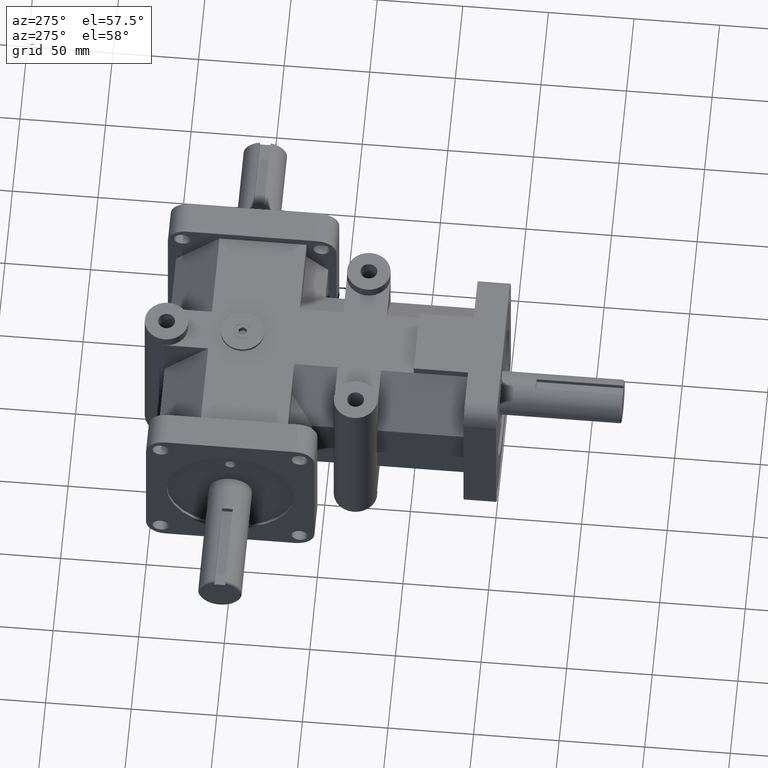
[diagram: clean part render]
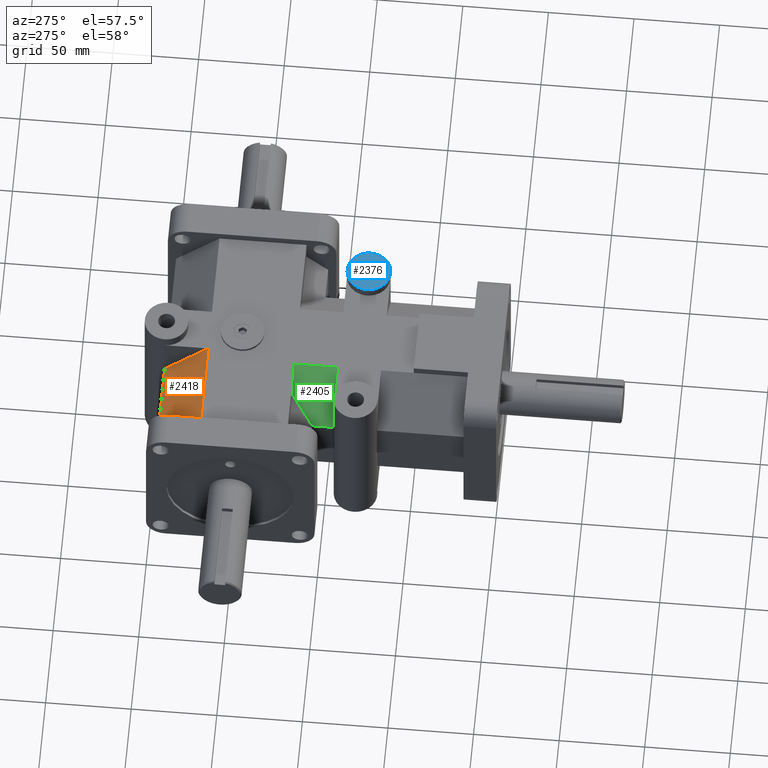
[diagram: same view with three faces highlighted in distinct colors, each labeled with its STEP entity id]
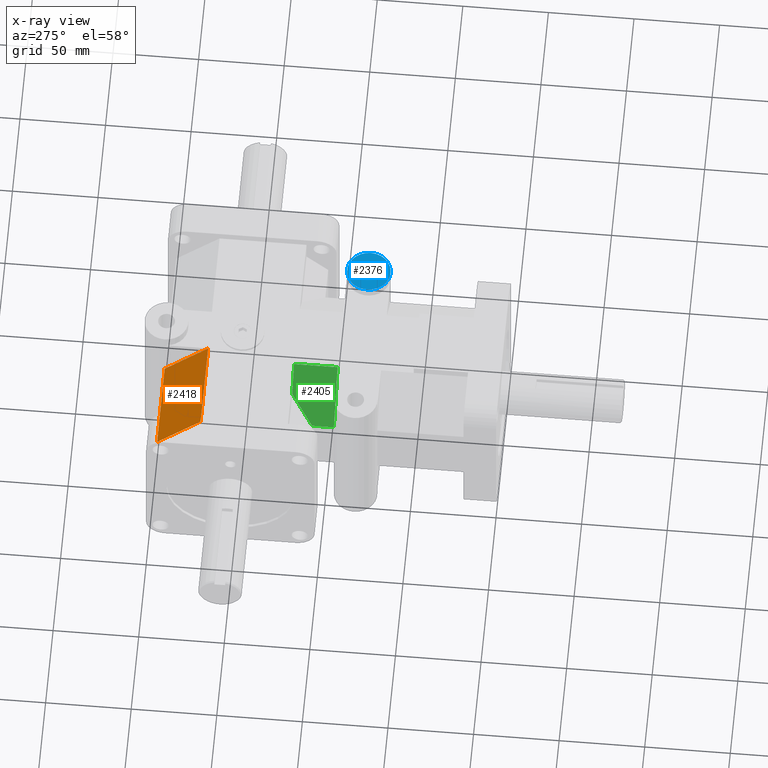
[diagram: x-ray of the same camera — body ghosted, the three highlighted faces saturated]
A machine part, auxiliary view with three faces highlighted in distinct colors.
The next image is the same camera in x-ray (body ghosted, the three faces saturated) — at least one of them is partly hidden behind the body in this view.
Their STEP definitions:

[orange] entity #2418 — the highlighted planar face has unit normal (0, 0.7071, 0.7071).
#194=VERTEX_POINT('',#3289);
#195=VERTEX_POINT('',#3291);
#205=VERTEX_POINT('',#3313);
#391=VERTEX_POINT('',#3840);
#422=VECTOR('',#2695,1.);
#430=VECTOR('',#2704,1.);
#565=VECTOR('',#3168,1.);
#596=VECTOR('',#3214,1.);
#623=LINE('',#3290,#422);
#631=LINE('',#3306,#430);
#766=LINE('',#3839,#565);
#797=LINE('',#3899,#596);
#833=EDGE_CURVE('',#195,#194,#623,.F.);
#845=EDGE_CURVE('',#194,#205,#631,.T.);
#1079=EDGE_CURVE('',#205,#391,#766,.T.);
#1137=EDGE_CURVE('',#391,#195,#797,.T.);
#1717=ORIENTED_EDGE('',*,*,#1079,.T.);
#1718=ORIENTED_EDGE('',*,*,#1137,.T.);
#1719=ORIENTED_EDGE('',*,*,#833,.T.);
#1720=ORIENTED_EDGE('',*,*,#845,.T.);
#2017=EDGE_LOOP('',(#1717,#1718,#1719,#1720));
#2252=FACE_BOUND('',#2017,.T.);
#2418=ADVANCED_FACE('',(#2252),#4000,.T.);
#2648=AXIS2_PLACEMENT_3D('',#3905,#3219,$);
#2695=DIRECTION('',(0.,0.707106781186548,-0.707106781186548));
#2704=DIRECTION('',(1.,0.,0.));
#3168=DIRECTION('',(0.,0.707106781186548,-0.707106781186548));
#3214=DIRECTION('',(-1.,0.,0.));
#3219=DIRECTION('',(0.,0.707106781186548,0.707106781186548));
#3289=CARTESIAN_POINT('',(-2.5,6.75,1.75));
#3290=CARTESIAN_POINT('',(-2.5,7.6875,0.8125));
#3291=CARTESIAN_POINT('',(-2.5,7.75,0.75));
#3306=CARTESIAN_POINT('',(1.25,6.75,1.75));
#3313=CARTESIAN_POINT('',(-0.5,6.75,1.75));
#3839=CARTESIAN_POINT('',(-0.5,7.6875,0.8125));
#3840=CARTESIAN_POINT('',(-0.5,7.75,0.749999999999999));
#3899=CARTESIAN_POINT('',(1.25,7.75,0.75));
#3905=CARTESIAN_POINT('',(1.25,7.25,1.25));
#4000=PLANE('',#2648);

[blue] entity #2376 — the highlighted planar face has unit normal (0, 0, 1).
#165=CIRCLE('',#2617,0.195);
#168=CIRCLE('',#2622,0.5);
#381=VERTEX_POINT('',#3810);
#384=VERTEX_POINT('',#3818);
#1068=EDGE_CURVE('',#381,#381,#165,.T.);
#1071=EDGE_CURVE('',#384,#384,#168,.T.);
#1549=ORIENTED_EDGE('',*,*,#1068,.T.);
#1550=ORIENTED_EDGE('',*,*,#1071,.F.);
#1963=EDGE_LOOP('',(#1549));
#1964=EDGE_LOOP('',(#1550));
#2198=FACE_BOUND('',#1963,.T.);
#2199=FACE_BOUND('',#1964,.T.);
#2376=ADVANCED_FACE('',(#2198,#2199),#3982,.T.);
#2617=AXIS2_PLACEMENT_3D('',#3809,#3138,#3139);
#2621=AXIS2_PLACEMENT_3D('',#3816,#3146,$);
#2622=AXIS2_PLACEMENT_3D('',#3817,#3147,#3148);
#3138=DIRECTION('',(0.,0.,-1.));
#3139=DIRECTION('',(0.195,0.,0.));
#3146=DIRECTION('',(0.,0.,1.));
#3147=DIRECTION('',(0.,0.,-1.));
#3148=DIRECTION('',(0.5,0.,0.));
#3809=CARTESIAN_POINT('',(1.75,3.25,2.));
#3810=CARTESIAN_POINT('',(1.945,3.25,2.));
#3816=CARTESIAN_POINT('',(1.79545454545455,3.25,2.));
#3817=CARTESIAN_POINT('',(1.75,3.25,2.));
#3818=CARTESIAN_POINT('',(2.25,3.25,2.));
#3982=PLANE('',#2621);

[green] entity #2405 — the highlighted planar face has unit normal (-0.7071, 0, 0.7071).
#178=VERTEX_POINT('',#3257);
#180=VERTEX_POINT('',#3260);
#206=VERTEX_POINT('',#3315);
#235=VERTEX_POINT('',#3376);
#390=VERTEX_POINT('',#3836);
#415=VECTOR('',#2671,1.);
#433=VECTOR('',#2709,1.);
#453=VECTOR('',#2753,1.);
#563=VECTOR('',#3165,1.);
#590=VECTOR('',#3204,1.);
#616=LINE('',#3259,#415);
#634=LINE('',#3314,#433);
#654=LINE('',#3377,#453);
#764=LINE('',#3835,#563);
#791=LINE('',#3886,#590);
#817=EDGE_CURVE('',#180,#178,#616,.T.);
#846=EDGE_CURVE('',#180,#206,#634,.T.);
#878=EDGE_CURVE('',#235,#178,#654,.T.);
#1077=EDGE_CURVE('',#390,#206,#764,.T.);
#1113=EDGE_CURVE('',#235,#390,#791,.T.);
#1662=ORIENTED_EDGE('',*,*,#817,.T.);
#1663=ORIENTED_EDGE('',*,*,#878,.F.);
#1664=ORIENTED_EDGE('',*,*,#1113,.T.);
#1665=ORIENTED_EDGE('',*,*,#1077,.T.);
#1666=ORIENTED_EDGE('',*,*,#846,.F.);
#2004=EDGE_LOOP('',(#1662,#1663,#1664,#1665,#1666));
#2239=FACE_BOUND('',#2004,.T.);
#2405=ADVANCED_FACE('',(#2239),#3997,.T.);
#2645=AXIS2_PLACEMENT_3D('',#3895,#3211,$);
#2671=DIRECTION('',(-0.707106781186548,0.,-0.707106781186548));
#2709=DIRECTION('',(0.,-1.,0.));
#2753=DIRECTION('',(0.577350269189626,0.577350269189626,0.577350269189626));
#3165=DIRECTION('',(0.707106781186548,0.,0.707106781186548));
#3204=DIRECTION('',(0.,-1.,0.));
#3211=DIRECTION('',(-0.707106781186548,0.,0.707106781186548));
#3257=CARTESIAN_POINT('',(-1.25,4.75,1.25));
#3259=CARTESIAN_POINT('',(-1.4375,4.75,1.0625));
#3260=CARTESIAN_POINT('',(-0.75,4.75,1.75));
#3314=CARTESIAN_POINT('',(-0.75,6.65396341463415,1.75));
#3315=CARTESIAN_POINT('',(-0.75,3.75,1.75));
#3376=CARTESIAN_POINT('',(-1.75,4.25,0.75));
#3377=CARTESIAN_POINT('',(-1.08333333333333,4.91666666666667,1.41666666666667));
#3835=CARTESIAN_POINT('',(-1.375,3.75,1.125));
#3836=CARTESIAN_POINT('',(-1.75,3.75,0.75));
#3886=CARTESIAN_POINT('',(-1.75,4.27896341463415,0.75));
#3895=CARTESIAN_POINT('',(-1.25,4.27896341463415,1.25));
#3997=PLANE('',#2645);